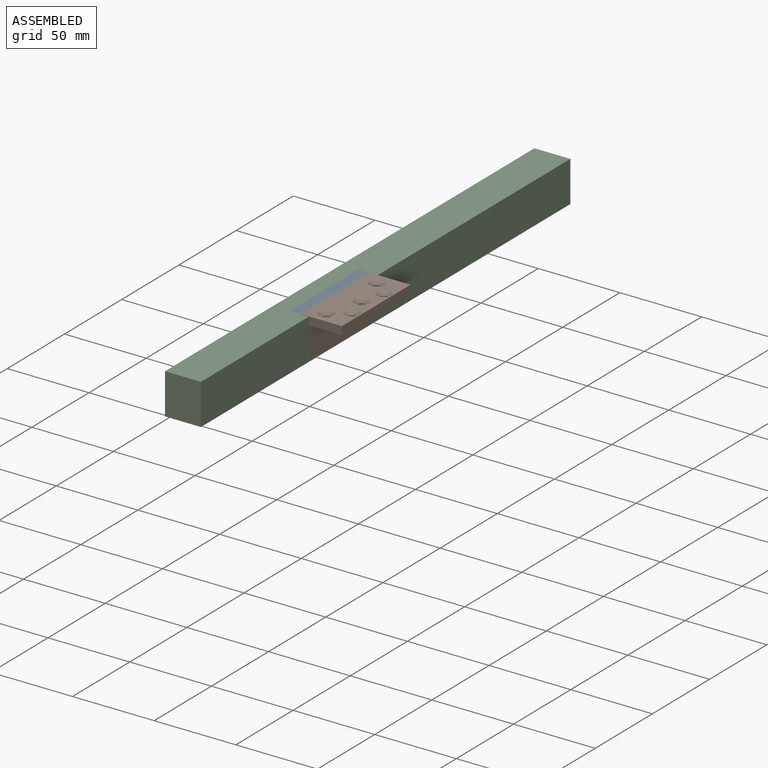
[diagram: assembled view]
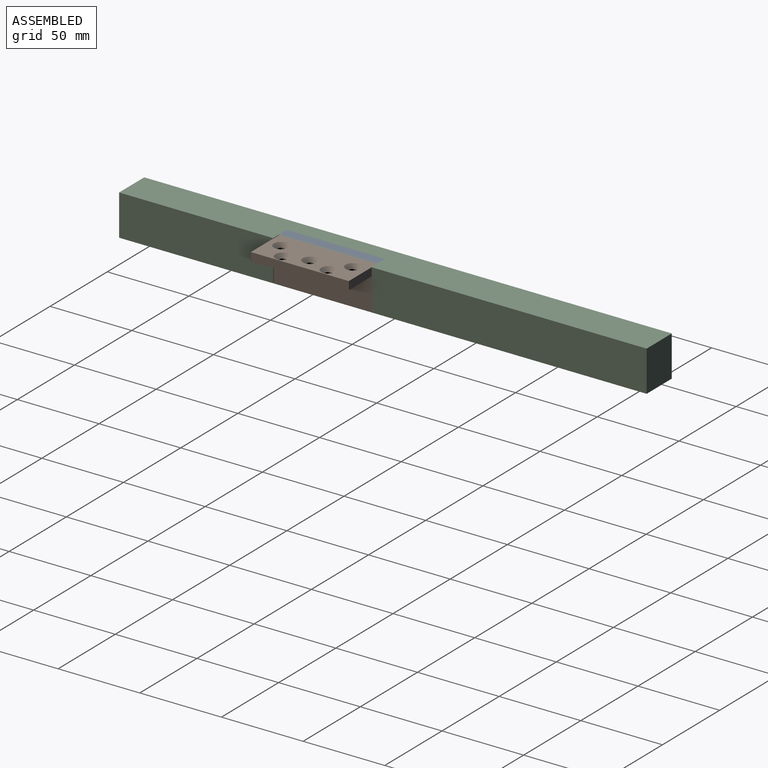
[diagram: assembled view, second angle]
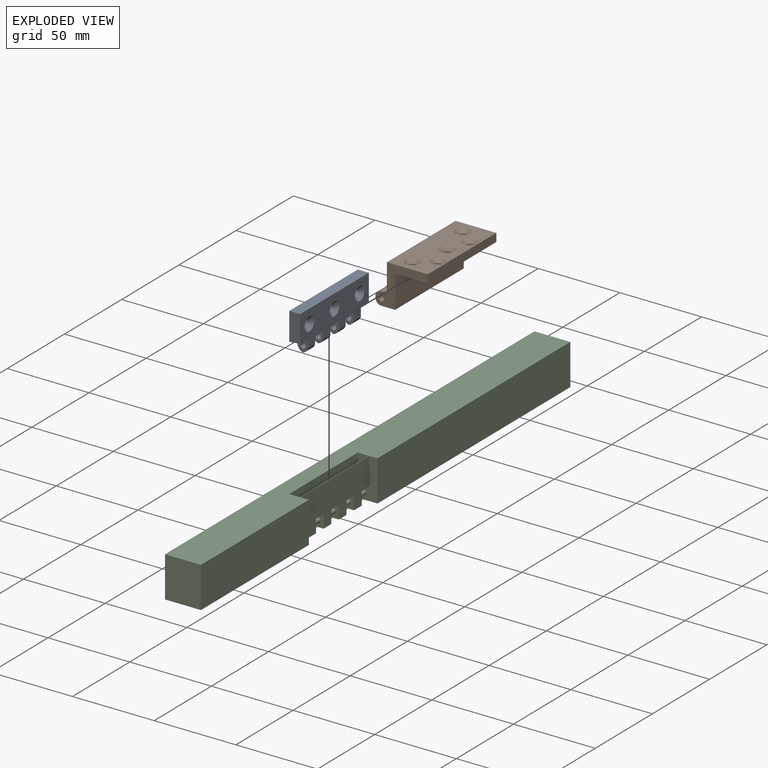
[diagram: exploded view]
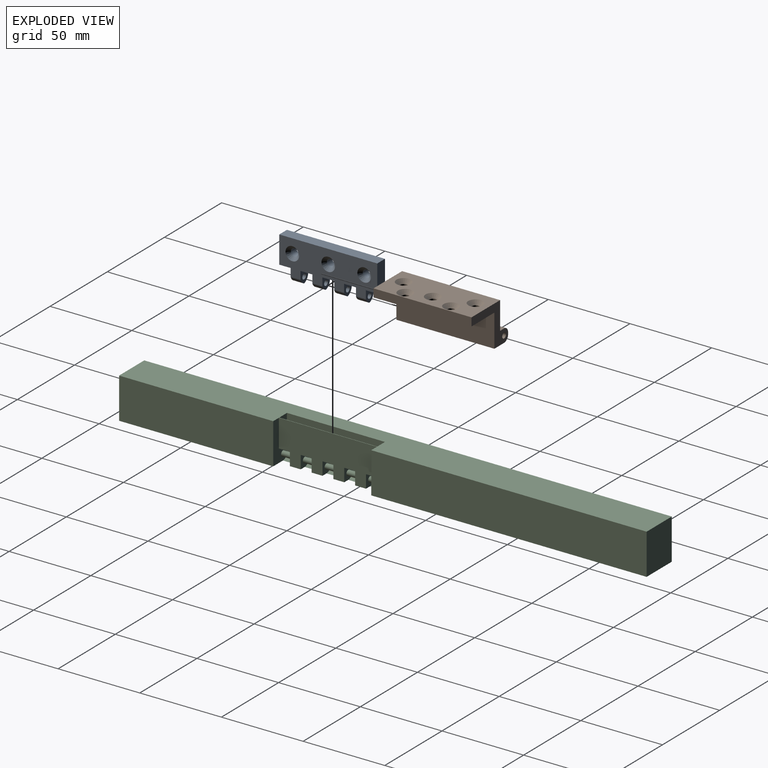
[diagram: exploded view, second angle]
ASSEMBLY  parts=3 mates=2
PART A: 50 faces, bbox 6.7x60x24.8 mm
  f0: cylinder r=3.8mm len=7.27mm, axis (0,-1,0), area 11.1mm2, adj f7,f21,f29,f32,f39,f49
  f1: cylinder r=3.8mm len=7.27mm, axis (0,-1,0), area 11.1mm2, adj f7,f22,f31,f33,f38,f48
  f2: cylinder r=3.8mm len=7.27mm, axis (0,-1,0), area 11.1mm2, adj f7,f18,f34,f36,f41,f47
  f3: cylinder r=3.8mm len=6.97mm, axis (0,-1,0), area 10.6mm2, adj f4,f19,f35,f40
  f4: plane 17x6.7mm, normal (0,-1,0), area 112.6mm2, adj f3,f5,f7,f19,f37,f40
  f5: plane 60x6.7mm, normal (0,0,1), area 402mm2, adj f4,f6,f7,f37
  f6: plane 17x6.7mm, normal (0,1,0), area 112.6mm2, adj f5,f7,f20,f27,f28,f37
  f7: plane 60x20mm, normal (-1,0,0), area 1045.2mm2, adj f0,f1,f2,f4,f5,f6,f8,f10
  f8: cylinder r=5mm len=6.07mm, axis (0,-1,0), area 38.4mm2, adj f7,f9,f29,f30
  f9: cylinder r=5mm len=6.07mm, axis (0,1,0), area 27.8mm2, adj f8,f29,f30,f37
  f10: cylinder r=5mm len=6.07mm, axis (0,-1,0), area 38.4mm2, adj f7,f11,f31,f32
  f11: cylinder r=5mm len=6.07mm, axis (0,1,0), area 27.8mm2, adj f10,f31,f32,f37
  f12: cylinder r=5mm len=6.07mm, axis (0,-1,0), area 38.4mm2, adj f7,f23,f33,f34
  f13: cylinder r=5mm len=6.07mm, axis (0,-1,0), area 38.4mm2, adj f7,f14,f35,f36
  f14: cylinder r=5mm len=6.07mm, axis (0,1,0), area 27.8mm2, adj f13,f35,f36,f37
  f15: cone r=2.25mm half-angle=45deg, axis (1,0,0), area 55.1mm2, adj f24,f37
  f16: cone r=2.25mm half-angle=45deg, axis (1,0,0), area 55.1mm2, adj f25,f37
  f17: cone r=2.25mm half-angle=45deg, axis (1,0,0), area 55.1mm2, adj f26,f37
  f18: plane 7.26x2.02mm, normal (0,0,-1), area 14.7mm2, adj f2,f7,f36,f47
  f19: plane 6.96x2.02mm, normal (0,0,-1), area 14.1mm2, adj f3,f4,f7,f46
  f20: plane 6.97x2.02mm, normal (0,0,-1), area 14.1mm2, adj f6,f7,f28,f30
  f21: plane 7.26x2.02mm, normal (0,0,-1), area 14.7mm2, adj f0,f7,f32,f49
  f22: plane 7.26x2.02mm, normal (0,0,-1), area 14.7mm2, adj f1,f7,f33,f48
  f23: cylinder r=5mm len=6.07mm, axis (0,1,0), area 27.8mm2, adj f12,f33,f34,f37
  f24: cylinder r=2.25mm len=4.77mm, axis (1,0,0), area 67.4mm2, adj f7,f15
  f25: cylinder r=2.25mm len=4.77mm, axis (1,0,0), area 67.4mm2, adj f7,f16
  f26: cylinder r=2.25mm len=4.77mm, axis (1,0,0), area 67.4mm2, adj f7,f17
  f27: plane 6.97x3.2mm, normal (0,0,-1), area 22.3mm2, adj f6,f28,f30,f37
  f28: cylinder r=3.8mm len=6.97mm, axis (0,-1,0), area 10.6mm2, adj f6,f20,f27,f30
  f29: plane 8.07x6.7mm, normal (0,-1,0), area 36mm2, adj f0,f7,f8,f9,f37,f39,f43
  f30: plane 8.07x6.7mm, normal (0,1,0), area 37.5mm2, adj f7,f8,f9,f20,f27,f28,f37,f43
  f31: plane 8.07x6.7mm, normal (0,-1,0), area 36mm2, adj f1,f7,f10,f11,f37,f38,f44
  f32: plane 8.07x6.7mm, normal (0,1,0), area 37.5mm2, adj f0,f7,f10,f11,f21,f37,f39,f44
  f33: plane 8.07x6.7mm, normal (0,1,0), area 37.5mm2, adj f1,f7,f12,f22,f23,f37,f38,f45
  f34: plane 8.07x6.7mm, normal (0,-1,0), area 36mm2, adj f2,f7,f12,f23,f37,f41,f45
  f35: plane 8.09x6.72mm, normal (0,-1,0), area 36mm2, adj f3,f7,f13,f14,f37,f40,f42,f46
  f36: plane 8.07x6.7mm, normal (0,1,0), area 37.5mm2, adj f2,f7,f13,f14,f18,f37,f41,f42
  f37: plane 60x21.71mm, normal (1,0,0), area 958.8mm2, adj f4,f5,f6,f9,f11,f14,f15,f16
  f38: plane 7.27x3.2mm, normal (0,0,-1), area 23.3mm2, adj f1,f31,f33,f37
  f39: plane 7.27x3.2mm, normal (0,0,-1), area 23.3mm2, adj f0,f29,f32,f37
  f40: plane 6.97x3.2mm, normal (0,0,-1), area 22.3mm2, adj f3,f4,f35,f37
  f41: plane 7.27x3.2mm, normal (0,0,-1), area 23.3mm2, adj f2,f34,f36,f37
  f42: cylinder r=1.6mm len=6.07mm, axis (0,-1,0), area 61mm2, adj f35,f36
  f43: cylinder r=1.6mm len=6.07mm, axis (0,-1,0), area 61mm2, adj f29,f30
  f44: cylinder r=1.6mm len=6.07mm, axis (0,-1,0), area 61mm2, adj f31,f32
  f45: cylinder r=1.6mm len=6.07mm, axis (0,-1,0), area 61mm2, adj f33,f34
  f46: plane 2.04x2.04mm, normal (0,-1,0), area 1.5mm2, adj f7,f19,f35
  f47: plane 2.02x2.02mm, normal (0,-1,0), area 1.5mm2, adj f2,f7,f18
  f48: plane 2.02x2.02mm, normal (0,-1,0), area 1.5mm2, adj f1,f7,f22
  f49: plane 2.02x2.02mm, normal (0,-1,0), area 1.5mm2, adj f0,f7,f21
PART B: 51 faces, bbox 32x60x25 mm
  f0: plane 60x25mm, normal (-1,0,0), area 1233.3mm2, adj f1,f3,f4,f7,f8,f9,f10,f12
  f1: plane 32x25mm, normal (0,-1,0), area 267.7mm2, adj f0,f2,f4,f5,f6,f7,f16,f18
  f2: plane 60x5mm, normal (1,0,0), area 300mm2, adj f1,f3,f4,f5
  f3: plane 32x25mm, normal (0,1,0), area 267.7mm2, adj f0,f2,f4,f5,f6,f7,f20,f21
  f4: plane 60x25mm, normal (0,0,1), area 1184.7mm2, adj f0,f1,f2,f3,f42,f44,f46,f48
  f5: plane 60x20mm, normal (0,0,-1), area 1120.5mm2, adj f1,f2,f3,f6,f41,f43,f45,f47
  f6: plane 60x20mm, normal (1,0,0), area 1200mm2, adj f1,f3,f5,f7
  f7: plane 60x8.5mm, normal (0,0,-1), area 416.7mm2, adj f0,f1,f3,f6,f8,f10,f12,f14
  f8: plane 8x7mm, normal (0,-1,0), area 42.7mm2, adj f0,f7,f9,f11,f30,f35,f36
  f9: plane 6.67x3.5mm, normal (0,0,1), area 23.3mm2, adj f0,f8,f10,f35
  f10: plane 8x7mm, normal (0,1,0), area 42.7mm2, adj f0,f7,f9,f11,f30,f35,f36
  f11: plane 6.67x1mm, normal (-1,0,0), area 6.7mm2, adj f8,f10,f35,f36
  f12: plane 8x7mm, normal (0,-1,0), area 42.7mm2, adj f0,f7,f13,f15,f29,f33,f34
  f13: plane 6.67x3.5mm, normal (0,0,1), area 23.3mm2, adj f0,f12,f14,f33
  f14: plane 8x7mm, normal (0,1,0), area 42.7mm2, adj f0,f7,f13,f15,f29,f33,f34
  f15: plane 6.67x1mm, normal (-1,0,0), area 6.7mm2, adj f12,f14,f33,f34
  f16: plane 6.67x3.5mm, normal (0,0,1), area 23.3mm2, adj f0,f1,f17,f39
  f17: plane 8x7mm, normal (0,1,0), area 42.7mm2, adj f0,f7,f16,f18,f28,f39,f40
  f18: plane 6.67x1mm, normal (-1,0,0), area 6.7mm2, adj f1,f17,f39,f40
  f19: plane 8x7mm, normal (0,-1,0), area 42.7mm2, adj f0,f7,f20,f21,f27,f31,f32
  f20: plane 6.67x3.5mm, normal (0,0,1), area 23.3mm2, adj f0,f3,f19,f31
  f21: plane 6.67x1mm, normal (-1,0,0), area 6.7mm2, adj f3,f19,f31,f32
  f22: plane 8x7mm, normal (0,-1,0), area 42.7mm2, adj f0,f7,f23,f25,f26,f37,f38
  f23: plane 6.67x3.5mm, normal (0,0,1), area 23.3mm2, adj f0,f22,f24,f37
  f24: plane 8x7mm, normal (0,1,0), area 42.7mm2, adj f0,f7,f23,f25,f26,f37,f38
  f25: plane 6.67x1mm, normal (-1,0,0), area 6.7mm2, adj f22,f24,f37,f38
  f26: cylinder r=1.6mm len=6.67mm, axis (0,-1,0), area 67mm2, adj f22,f24
  f27: cylinder r=1.6mm len=6.67mm, axis (0,-1,0), area 67mm2, adj f3,f19
  f28: cylinder r=1.6mm len=6.67mm, axis (0,-1,0), area 67mm2, adj f1,f17
  f29: cylinder r=1.6mm len=6.67mm, axis (0,-1,0), area 67mm2, adj f12,f14
  f30: cylinder r=1.6mm len=6.67mm, axis (0,-1,0), area 67mm2, adj f8,f10
  f31: cylinder r=3.5mm len=6.67mm, axis (0,-1,0), area 36.7mm2, adj f3,f19,f20,f21
  f32: cylinder r=3.5mm len=6.67mm, axis (0,1,0), area 36.7mm2, adj f3,f7,f19,f21
  f33: cylinder r=3.5mm len=6.67mm, axis (0,-1,0), area 36.7mm2, adj f12,f13,f14,f15
  f34: cylinder r=3.5mm len=6.67mm, axis (0,1,0), area 36.7mm2, adj f7,f12,f14,f15
  f35: cylinder r=3.5mm len=6.67mm, axis (0,-1,0), area 36.7mm2, adj f8,f9,f10,f11
  f36: cylinder r=3.5mm len=6.67mm, axis (0,1,0), area 36.7mm2, adj f7,f8,f10,f11
  f37: cylinder r=3.5mm len=6.67mm, axis (0,-1,0), area 36.7mm2, adj f22,f23,f24,f25
  f38: cylinder r=3.5mm len=6.67mm, axis (0,1,0), area 36.7mm2, adj f7,f22,f24,f25
  f39: cylinder r=3.5mm len=6.67mm, axis (0,-1,0), area 36.7mm2, adj f1,f16,f17,f18
  f40: cylinder r=3.5mm len=6.67mm, axis (0,1,0), area 36.7mm2, adj f1,f7,f17,f18
  f41: cylinder r=2.25mm len=4.5mm, axis (0,0,1), area 39.2mm2, adj f5,f42
  f42: cone r=2.25mm half-angle=45deg, axis (0,0,1), area 66.7mm2, adj f4,f41
  f43: cylinder r=2.25mm len=4.5mm, axis (0,0,1), area 39.2mm2, adj f5,f44
  f44: cone r=2.25mm half-angle=45deg, axis (0,0,1), area 66.7mm2, adj f4,f43
  f45: cylinder r=2.25mm len=4.5mm, axis (0,0,1), area 39.2mm2, adj f5,f46
  f46: cone r=2.25mm half-angle=45deg, axis (0,0,1), area 66.7mm2, adj f4,f45
  f47: cylinder r=2.25mm len=4.5mm, axis (0,0,1), area 39.2mm2, adj f5,f48
  f48: cone r=2.25mm half-angle=45deg, axis (0,0,1), area 66.7mm2, adj f4,f47
  f49: cylinder r=2.25mm len=4.5mm, axis (0,0,1), area 39.2mm2, adj f5,f50
  f50: cone r=2.25mm half-angle=45deg, axis (0,0,1), area 66.7mm2, adj f4,f49
PART C: 96 faces, bbox 22x323x25 mm
  f0: plane 323x22mm, normal (0,0,1), area 6404mm2, adj f2,f3,f4,f5,f6,f7,f8,f9
  f1: plane 323x22mm, normal (0,0,-1), area 6689.3mm2, adj f2,f3,f4,f5,f6,f7,f8,f9
  f2: plane 94.37x25mm, normal (1,0,0), area 2359.3mm2, adj f0,f1,f5,f8
  f3: plane 168.63x25mm, normal (1,0,0), area 4215.7mm2, adj f0,f1,f4,f9
  f4: plane 25x22mm, normal (0,1,0), area 550mm2, adj f0,f1,f3,f6
  f5: plane 25x22mm, normal (0,-1,0), area 550mm2, adj f0,f1,f2,f6
  f6: plane 323x25mm, normal (-1,0,0), area 8075mm2, adj f0,f1,f4,f5
  f7: plane 60x25mm, normal (1,0,0), area 1233.3mm2, adj f0,f1,f8,f9,f10,f11,f12,f14
  f8: plane 25x12mm, normal (0,1,0), area 167.7mm2, adj f0,f1,f2,f7,f18,f20,f30,f41
  f9: plane 25x12mm, normal (0,-1,0), area 167.7mm2, adj f0,f1,f3,f7,f22,f23,f29,f33
  f10: plane 8x7mm, normal (0,1,0), area 42.7mm2, adj f1,f7,f11,f13,f32,f37,f38
  f11: plane 6.67x3.5mm, normal (0,0,-1), area 23.3mm2, adj f7,f10,f12,f37
  f12: plane 8x7mm, normal (0,-1,0), area 42.7mm2, adj f1,f7,f11,f13,f32,f37,f38
  f13: plane 6.67x1mm, normal (1,0,0), area 6.7mm2, adj f10,f12,f37,f38
  f14: plane 8x7mm, normal (0,1,0), area 42.7mm2, adj f1,f7,f15,f17,f31,f35,f36
  f15: plane 6.67x3.5mm, normal (0,0,-1), area 23.3mm2, adj f7,f14,f16,f35
  f16: plane 8x7mm, normal (0,-1,0), area 42.7mm2, adj f1,f7,f15,f17,f31,f35,f36
  f17: plane 6.67x1mm, normal (1,0,0), area 6.7mm2, adj f14,f16,f35,f36
  f18: plane 6.67x3.5mm, normal (0,0,-1), area 23.3mm2, adj f7,f8,f19,f41
  f19: plane 8x7mm, normal (0,-1,0), area 42.7mm2, adj f1,f7,f18,f20,f30,f41,f42
  f20: plane 6.67x1mm, normal (1,0,0), area 6.7mm2, adj f8,f19,f41,f42
  f21: plane 8x7mm, normal (0,1,0), area 42.7mm2, adj f1,f7,f22,f23,f29,f33,f34
  f22: plane 6.67x3.5mm, normal (0,0,-1), area 23.3mm2, adj f7,f9,f21,f33
  f23: plane 6.67x1mm, normal (1,0,0), area 6.7mm2, adj f9,f21,f33,f34
  f24: plane 8x7mm, normal (0,1,0), area 42.7mm2, adj f1,f7,f25,f27,f28,f39,f40
  f25: plane 6.67x3.5mm, normal (0,0,-1), area 23.3mm2, adj f7,f24,f26,f39
  f26: plane 8x7mm, normal (0,-1,0), area 42.7mm2, adj f1,f7,f25,f27,f28,f39,f40
  f27: plane 6.67x1mm, normal (1,0,0), area 6.7mm2, adj f24,f26,f39,f40
  f28: cylinder r=1.6mm len=6.67mm, axis (0,-1,0), area 67mm2, adj f24,f26
  f29: cylinder r=1.6mm len=6.67mm, axis (0,-1,0), area 67mm2, adj f9,f21
  f30: cylinder r=1.6mm len=6.67mm, axis (0,-1,0), area 67mm2, adj f8,f19
  f31: cylinder r=1.6mm len=6.67mm, axis (0,-1,0), area 67mm2, adj f14,f16
  f32: cylinder r=1.6mm len=6.67mm, axis (0,-1,0), area 67mm2, adj f10,f12
  f33: cylinder r=3.5mm len=6.67mm, axis (0,-1,0), area 36.7mm2, adj f9,f21,f22,f23
  f34: cylinder r=3.5mm len=6.67mm, axis (0,1,0), area 36.7mm2, adj f1,f9,f21,f23
  f35: cylinder r=3.5mm len=6.67mm, axis (0,-1,0), area 36.7mm2, adj f14,f15,f16,f17
  f36: cylinder r=3.5mm len=6.67mm, axis (0,1,0), area 36.7mm2, adj f1,f14,f16,f17
  f37: cylinder r=3.5mm len=6.67mm, axis (0,-1,0), area 36.7mm2, adj f10,f11,f12,f13
  f38: cylinder r=3.5mm len=6.67mm, axis (0,1,0), area 36.7mm2, adj f1,f10,f12,f13
  f39: cylinder r=3.5mm len=6.67mm, axis (0,-1,0), area 36.7mm2, adj f24,f25,f26,f27
  f40: cylinder r=3.5mm len=6.67mm, axis (0,1,0), area 36.7mm2, adj f1,f24,f26,f27
  f41: cylinder r=3.5mm len=6.67mm, axis (0,-1,0), area 36.7mm2, adj f8,f18,f19,f20
  f42: cylinder r=3.5mm len=6.67mm, axis (0,1,0), area 36.7mm2, adj f1,f8,f19,f20
  f43: plane 17x6.7mm, normal (0,1,0), area 112.6mm2, adj f0,f45,f59,f86,f89,f91
  f44: plane 17x6.7mm, normal (0,-1,0), area 112.6mm2, adj f0,f45,f60,f73,f74,f86
  f45: plane 60x20mm, normal (1,0,0), area 1049.9mm2, adj f0,f43,f44,f46,f48,f50,f51,f56
  f46: cylinder r=5mm len=6.07mm, axis (0,-1,0), area 38.4mm2, adj f45,f47,f78,f79
  f47: cylinder r=5mm len=6.07mm, axis (0,1,0), area 27.8mm2, adj f46,f78,f79,f86
  f48: cylinder r=5mm len=6.07mm, axis (0,-1,0), area 38.4mm2, adj f45,f49,f80,f81
  f49: cylinder r=5mm len=6.07mm, axis (0,1,0), area 27.8mm2, adj f48,f80,f81,f86
  f50: cylinder r=5mm len=6.07mm, axis (0,-1,0), area 38.4mm2, adj f45,f69,f82,f83
  f51: cylinder r=5mm len=6.07mm, axis (0,-1,0), area 38.4mm2, adj f45,f52,f84,f85
  f52: cylinder r=5mm len=6.07mm, axis (0,1,0), area 27.8mm2, adj f51,f84,f85,f86
  f53: cone r=2.25mm half-angle=45deg, axis (1,0,0), area 55.1mm2, adj f70,f86
  f54: cone r=2.25mm half-angle=45deg, axis (1,0,0), area 55.1mm2, adj f71,f86
  f55: cone r=2.25mm half-angle=45deg, axis (1,0,0), area 55.1mm2, adj f72,f86
  f56: plane 6.67x2.02mm, normal (0,0,1), area 13.5mm2, adj f45,f57,f68,f77
  f57: plane 2.02x2.02mm, normal (0,-1,0), area 1.5mm2, adj f45,f56,f77
  f58: plane 2.02x2.02mm, normal (0,1,0), area 1.5mm2, adj f45,f59,f91
  f59: plane 6.67x2.02mm, normal (0,0,1), area 13.5mm2, adj f43,f45,f58,f91
  f60: plane 6.67x2.02mm, normal (0,0,1), area 13.5mm2, adj f44,f45,f61,f74
  f61: plane 2.02x2.02mm, normal (0,-1,0), area 1.5mm2, adj f45,f60,f74
  f62: plane 2.02x2.02mm, normal (0,1,0), area 1.5mm2, adj f45,f63,f75
  f63: plane 6.67x2.02mm, normal (0,0,1), area 13.5mm2, adj f45,f62,f64,f75
  f64: plane 2.02x2.02mm, normal (0,-1,0), area 1.5mm2, adj f45,f63,f75
  f65: plane 2.02x2.02mm, normal (0,1,0), area 1.5mm2, adj f45,f66,f76
  f66: plane 6.67x2.02mm, normal (0,0,1), area 13.5mm2, adj f45,f65,f67,f76
  f67: plane 2.02x2.02mm, normal (0,-1,0), area 1.5mm2, adj f45,f66,f76
  f68: plane 2.02x2.02mm, normal (0,1,0), area 1.5mm2, adj f45,f56,f77
  f69: cylinder r=5mm len=6.07mm, axis (0,1,0), area 27.8mm2, adj f50,f82,f83,f86
  f70: cylinder r=2.25mm len=4.77mm, axis (1,0,0), area 67.4mm2, adj f45,f53
  f71: cylinder r=2.25mm len=4.77mm, axis (1,0,0), area 67.4mm2, adj f45,f54
  f72: cylinder r=2.25mm len=4.77mm, axis (1,0,0), area 67.4mm2, adj f45,f55
  f73: plane 6.97x3.2mm, normal (0,0,1), area 22.3mm2, adj f44,f74,f79,f86
  f74: cylinder r=3.8mm len=6.97mm, axis (0,-1,0), area 11.5mm2, adj f44,f45,f60,f61,f73,f79
  f75: cylinder r=3.8mm len=7.27mm, axis (0,-1,0), area 12.8mm2, adj f45,f62,f63,f64,f78,f81,f88
  f76: cylinder r=3.8mm len=7.27mm, axis (0,-1,0), area 12.8mm2, adj f45,f65,f66,f67,f80,f82,f87
  f77: cylinder r=3.8mm len=7.27mm, axis (0,-1,0), area 12.8mm2, adj f45,f56,f57,f68,f83,f85,f90
  f78: plane 8.07x6.7mm, normal (0,1,0), area 36mm2, adj f45,f46,f47,f75,f86,f88,f93
  f79: plane 8.07x6.7mm, normal (0,-1,0), area 36mm2, adj f45,f46,f47,f73,f74,f86,f93
  f80: plane 8.07x6.7mm, normal (0,1,0), area 36mm2, adj f45,f48,f49,f76,f86,f87,f94
  f81: plane 8.07x6.7mm, normal (0,-1,0), area 36mm2, adj f45,f48,f49,f75,f86,f88,f94
  f82: plane 8.07x6.7mm, normal (0,-1,0), area 36mm2, adj f45,f50,f69,f76,f86,f87,f95
  f83: plane 8.07x6.7mm, normal (0,1,0), area 36mm2, adj f45,f50,f69,f77,f86,f90,f95
  f84: plane 8.07x6.7mm, normal (0,1,0), area 36mm2, adj f45,f51,f52,f86,f89,f91,f92
  f85: plane 8.07x6.7mm, normal (0,-1,0), area 36mm2, adj f45,f51,f52,f77,f86,f90,f92
  f86: plane 60x21.71mm, normal (-1,0,0), area 958.8mm2, adj f0,f43,f44,f47,f49,f52,f53,f54
  f87: plane 7.27x3.2mm, normal (0,0,1), area 23.3mm2, adj f76,f80,f82,f86
  f88: plane 7.27x3.2mm, normal (0,0,1), area 23.3mm2, adj f75,f78,f81,f86
  f89: plane 6.97x3.2mm, normal (0,0,1), area 22.3mm2, adj f43,f84,f86,f91
  f90: plane 7.27x3.2mm, normal (0,0,1), area 23.3mm2, adj f77,f83,f85,f86
  f91: cylinder r=3.8mm len=6.97mm, axis (0,-1,0), area 11.5mm2, adj f43,f45,f58,f59,f84,f89
  f92: cylinder r=1.6mm len=6.07mm, axis (0,-1,0), area 61mm2, adj f84,f85
  f93: cylinder r=1.6mm len=6.07mm, axis (0,-1,0), area 61mm2, adj f78,f79
  f94: cylinder r=1.6mm len=6.07mm, axis (0,-1,0), area 61mm2, adj f80,f81
  f95: cylinder r=1.6mm len=6.07mm, axis (0,-1,0), area 61mm2, adj f82,f83
PLACE A t=(0,6.67,0.5)mm
PLACE B t=(0,6.97,0.5)mm
PLACE C t=(0,6.67,0.5)mm
MATE revolute B.f26 <-> A.f42  axis (0,1,0) through (-8.5,13.63,-15.5)mm
MATE fastened C.f0 <-> A.f5  axis (0,0,1) through (-12,6.67,5.5)mm
